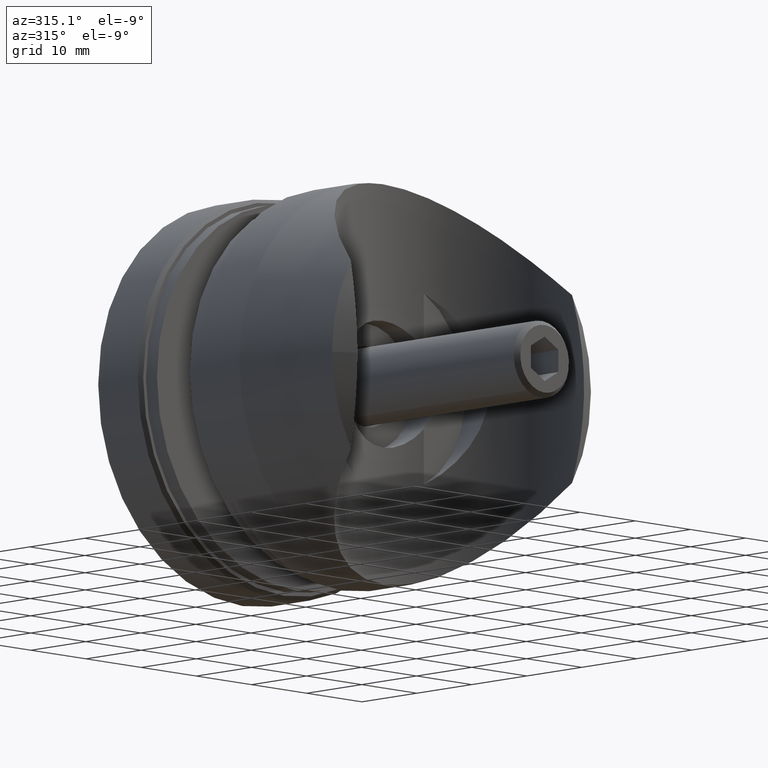
[diagram: clean part render]
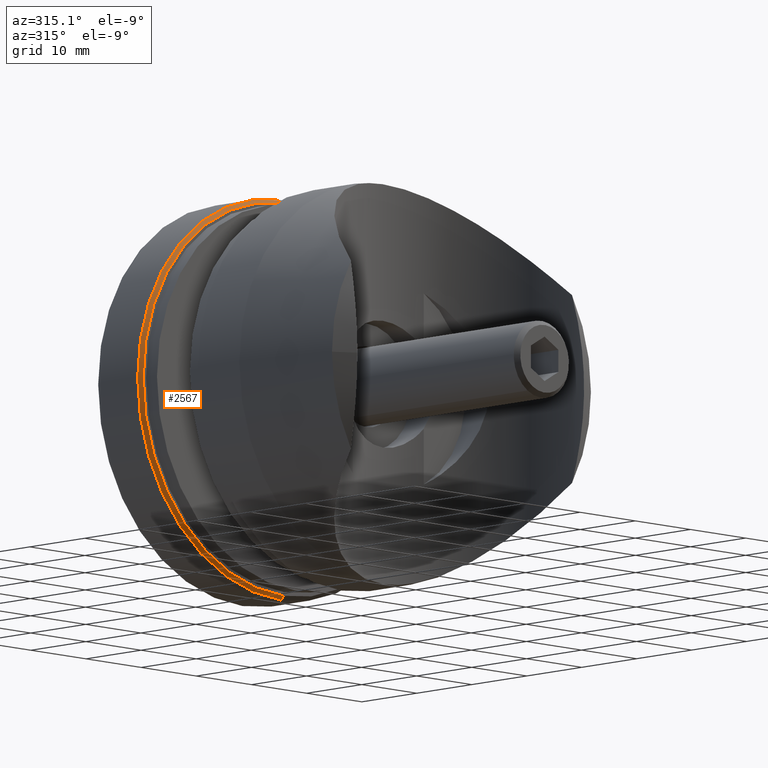
[diagram: same view with one face highlighted and labeled with its STEP entity id]
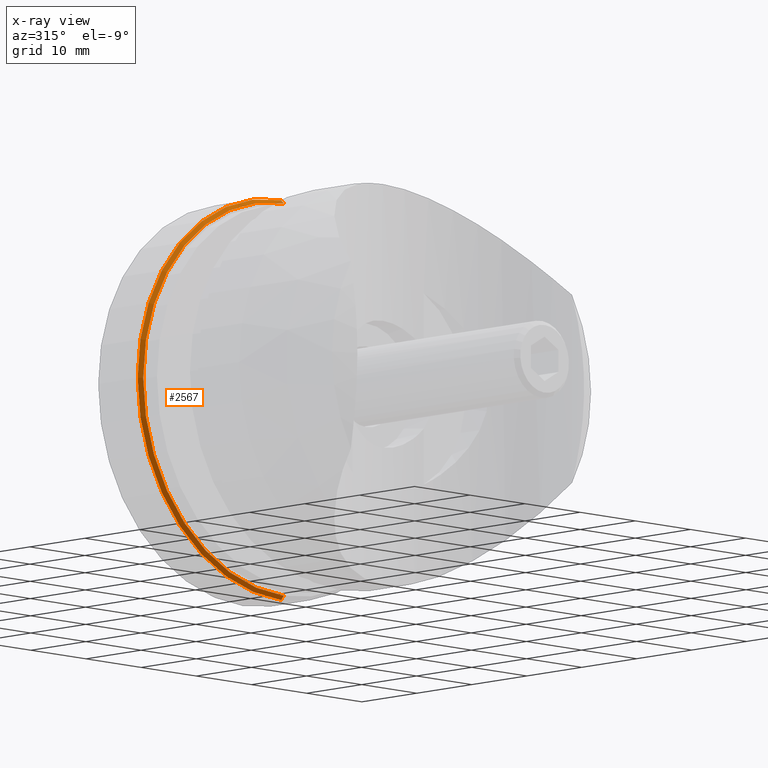
[diagram: x-ray of the same camera — body ghosted, the highlighted face saturated]
A machine part, auxiliary view. The second image highlights one B-rep face of the part: STEP entity #2567.
The next image is the same camera in x-ray: the body ghosted, the highlighted face saturated — about 0% of this face is hidden behind the body in this view.
In plain terms, the highlighted conical surface has half-angle 45 deg.
Its self-contained STEP definition (entity closure, byte-faithful):
#2567 = ADVANCED_FACE ( 'NONE', ( #10838 ), #8201, .T. ) ;
#2699 = CIRCLE ( 'NONE', #15766, 26.00000000000000000 ) ;
#2858 = EDGE_CURVE ( 'NONE', #7562, #16272, #16170, .T. ) ;
#3107 = CARTESIAN_POINT ( 'NONE',  ( 0.000000000000000000, 8.500000000000017764, 0.000000000000000000 ) ) ;
#3261 = DIRECTION ( 'NONE',  ( 0.000000000000000000, 0.000000000000000000, 1.000000000000000000 ) ) ;
#3356 = ORIENTED_EDGE ( 'NONE', *, *, #2858, .T. ) ;
#4174 = CARTESIAN_POINT ( 'NONE',  ( 0.000000000000000000, 8.000000000000000000, 25.49999999999999289 ) ) ;
#4258 = VECTOR ( 'NONE', #6057, 1000.000000000000114 ) ;
#4276 = CIRCLE ( 'NONE', #9258, 25.49999999999999289 ) ;
#4738 = VERTEX_POINT ( 'NONE', #10407 ) ;
#5217 = DIRECTION ( 'NONE',  ( -0.000000000000000000, -1.000000000000000000, -0.000000000000000000 ) ) ;
#5846 = DIRECTION ( 'NONE',  ( 0.000000000000000000, 1.000000000000000000, 0.000000000000000000 ) ) ;
#6057 = DIRECTION ( 'NONE',  ( 0.000000000000000000, 0.7071067811865549002, 0.7071067811865402453 ) ) ;
#6494 = EDGE_LOOP ( 'NONE', ( #8169, #8819, #3356, #16355 ) ) ;
#6594 = VERTEX_POINT ( 'NONE', #13204 ) ;
#6604 = CARTESIAN_POINT ( 'NONE',  ( 0.000000000000000000, 8.000000000000000000, 0.000000000000000000 ) ) ;
#7451 = LINE ( 'NONE', #9663, #15435 ) ;
#7562 = VERTEX_POINT ( 'NONE', #4174 ) ;
#8169 = ORIENTED_EDGE ( 'NONE', *, *, #13340, .F. ) ;
#8201 = CONICAL_SURFACE ( 'NONE', #11859, 25.49999999999999289, 0.7853981633974380649 ) ;
#8513 = CARTESIAN_POINT ( 'NONE',  ( 0.000000000000000000, 8.000000000000000000, 25.49999999999999289 ) ) ;
#8819 = ORIENTED_EDGE ( 'NONE', *, *, #9036, .F. ) ;
#9036 = EDGE_CURVE ( 'NONE', #7562, #6594, #4276, .T. ) ;
#9258 = AXIS2_PLACEMENT_3D ( 'NONE', #6604, #5217, #11794 ) ;
#9663 = CARTESIAN_POINT ( 'NONE',  ( 3.122849337825749433E-15, 8.000000000000000000, -25.49999999999999289 ) ) ;
#9747 = DIRECTION ( 'NONE',  ( 0.000000000000000000, 0.000000000000000000, -1.000000000000000000 ) ) ;
#10407 = CARTESIAN_POINT ( 'NONE',  ( 0.000000000000000000, 8.500000000000017764, -26.00000000000000000 ) ) ;
#10838 = FACE_OUTER_BOUND ( 'NONE', #6494, .T. ) ;
#10964 = DIRECTION ( 'NONE',  ( 8.659560562354844111E-17, 0.7071067811865549002, -0.7071067811865402453 ) ) ;
#11794 = DIRECTION ( 'NONE',  ( 0.000000000000000000, 0.000000000000000000, -1.000000000000000000 ) ) ;
#11859 = AXIS2_PLACEMENT_3D ( 'NONE', #15165, #14943, #3261 ) ;
#12991 = EDGE_CURVE ( 'NONE', #4738, #16272, #2699, .T. ) ;
#13204 = CARTESIAN_POINT ( 'NONE',  ( 3.153465507804433615E-15, 8.000000000000000000, -25.49999999999999289 ) ) ;
#13340 = EDGE_CURVE ( 'NONE', #6594, #4738, #7451, .T. ) ;
#14943 = DIRECTION ( 'NONE',  ( 0.000000000000000000, 1.000000000000000000, 0.000000000000000000 ) ) ;
#15165 = CARTESIAN_POINT ( 'NONE',  ( 0.000000000000000000, 8.000000000000000000, 0.000000000000000000 ) ) ;
#15435 = VECTOR ( 'NONE', #10964, 1000.000000000000114 ) ;
#15766 = AXIS2_PLACEMENT_3D ( 'NONE', #3107, #5846, #9747 ) ;
#16170 = LINE ( 'NONE', #8513, #4258 ) ;
#16272 = VERTEX_POINT ( 'NONE', #16757 ) ;
#16355 = ORIENTED_EDGE ( 'NONE', *, *, #12991, .F. ) ;
#16757 = CARTESIAN_POINT ( 'NONE',  ( 3.184081677783118191E-15, 8.500000000000017764, 26.00000000000000000 ) ) ;